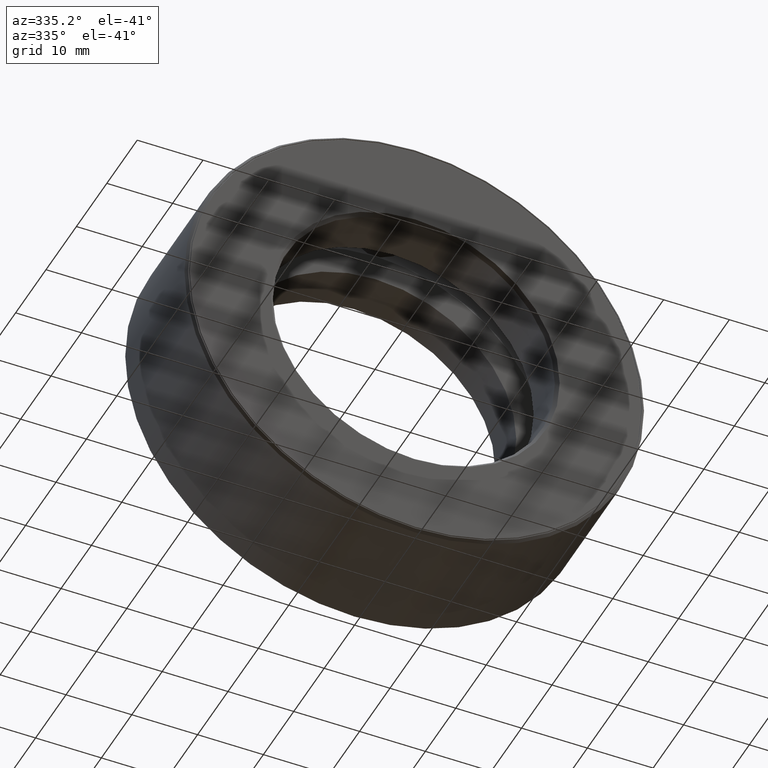
[diagram: clean part render]
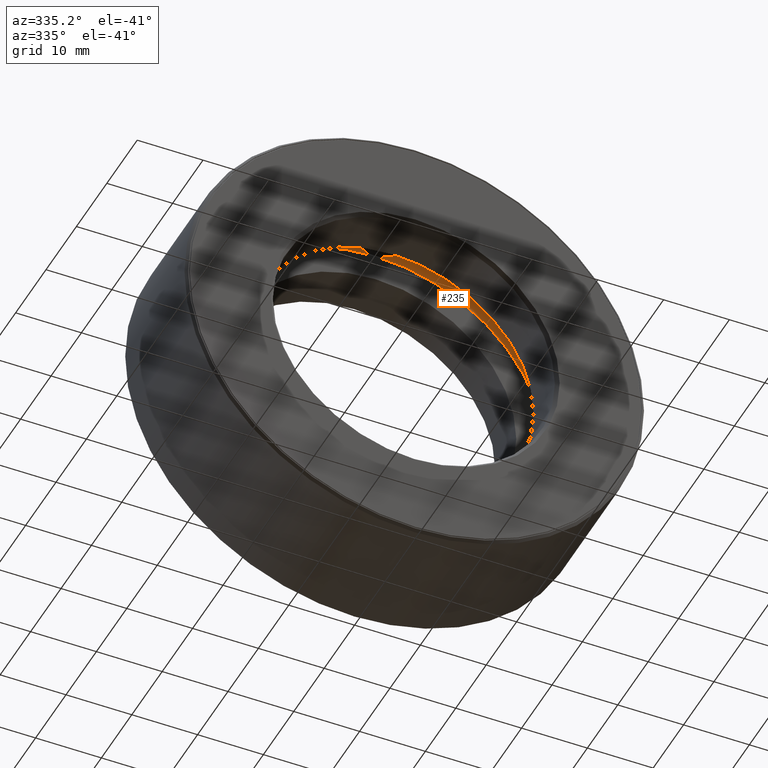
[diagram: same view with one face highlighted and labeled with its STEP entity id]
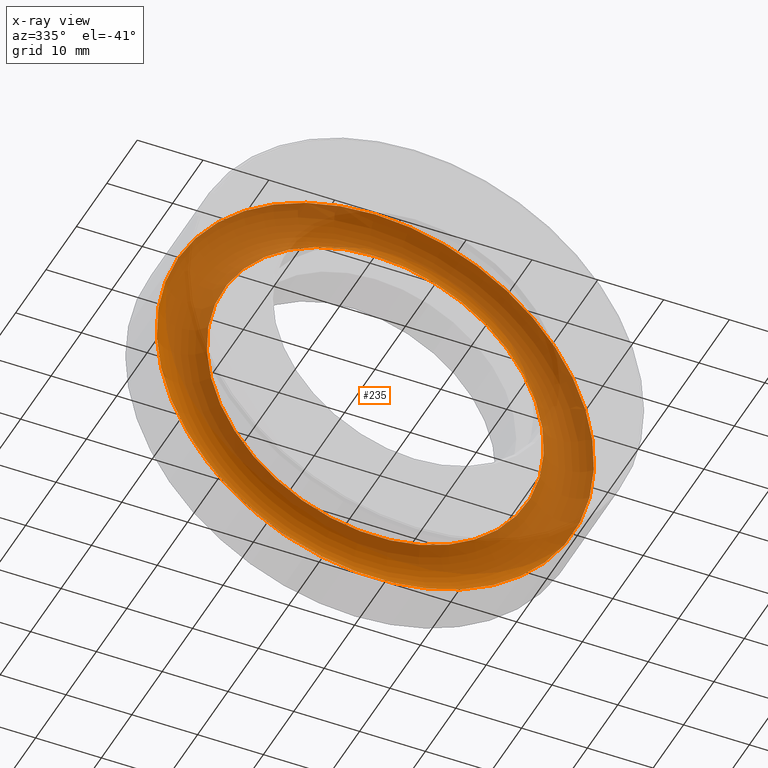
[diagram: x-ray of the same camera — body ghosted, the highlighted face saturated]
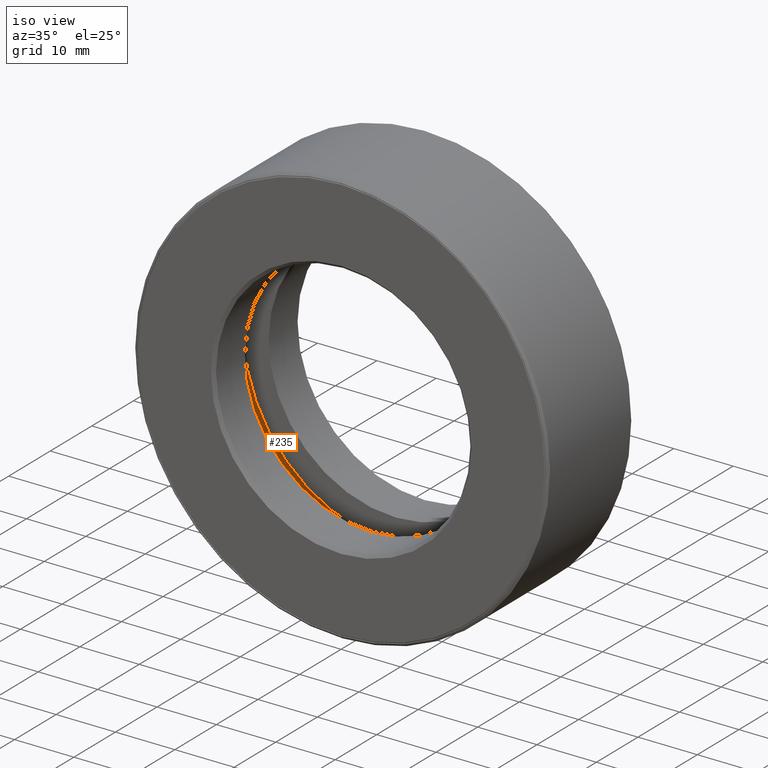
[diagram: same view with one face highlighted and labeled with its STEP entity id]
A machine part, auxiliary view. The second image highlights one B-rep face of the part: STEP entity #235.
The next image is the same camera in x-ray: the body ghosted, the highlighted face saturated — about 75% of this face is hidden behind the body in this view.
A second angle (iso view) of the same face is appended — the face is thin or edge-on in the first view.
In plain terms, the highlighted toroidal blend (fillet) surface has major radius 29.4259 mm and minor (blend) radius 4.7625 mm.
Its self-contained STEP definition (entity closure, byte-faithful):
#18 = EDGE_LOOP ( 'NONE', ( #511 ) ) ;
#36 = CARTESIAN_POINT ( 'NONE',  ( 0.0000000000000000000, 0.5187499999999998200, 0.0000000000000000000 ) ) ;
#56 = VERTEX_POINT ( 'NONE', #464 ) ;
#83 = FACE_OUTER_BOUND ( 'NONE', #18, .T. ) ;
#106 = CARTESIAN_POINT ( 'NONE',  ( 0.0000000000000000000, 0.4062499999999999400, 0.0000000000000000000 ) ) ;
#124 = CIRCLE ( 'NONE', #233, 1.308500000000000200 ) ;
#134 = AXIS2_PLACEMENT_3D ( 'NONE', #36, #595, #513 ) ;
#135 = CARTESIAN_POINT ( 'NONE',  ( 0.0000000000000000000, 0.5187499999999998200, 1.008500000000000000 ) ) ;
#167 = ORIENTED_EDGE ( 'NONE', *, *, #410, .T. ) ;
#192 = EDGE_LOOP ( 'NONE', ( #167 ) ) ;
#233 = AXIS2_PLACEMENT_3D ( 'NONE', #512, #598, #449 ) ;
#235 = ADVANCED_FACE ( 'NONE', ( #374, #83 ), #353, .F. ) ;
#236 = CIRCLE ( 'NONE', #134, 1.008500000000000000 ) ;
#348 = DIRECTION ( 'NONE',  ( 0.0000000000000000000, 0.0000000000000000000, 1.000000000000000000 ) ) ;
#353 = TOROIDAL_SURFACE ( 'NONE', #466, 1.158500000000000100, 0.1875000000000000800 ) ;
#374 = FACE_OUTER_BOUND ( 'NONE', #192, .T. ) ;
#410 = EDGE_CURVE ( 'NONE', #420, #420, #236, .T. ) ;
#420 = VERTEX_POINT ( 'NONE', #135 ) ;
#430 = DIRECTION ( 'NONE',  ( -0.0000000000000000000, 1.000000000000000000, -0.0000000000000000000 ) ) ;
#449 = DIRECTION ( 'NONE',  ( 0.0000000000000000000, 0.0000000000000000000, 1.000000000000000000 ) ) ;
#464 = CARTESIAN_POINT ( 'NONE',  ( 0.0000000000000000000, 0.5187499999999998200, 1.308500000000000200 ) ) ;
#466 = AXIS2_PLACEMENT_3D ( 'NONE', #106, #430, #348 ) ;
#511 = ORIENTED_EDGE ( 'NONE', *, *, #529, .F. ) ;
#512 = CARTESIAN_POINT ( 'NONE',  ( 0.0000000000000000000, 0.5187499999999998200, 0.0000000000000000000 ) ) ;
#513 = DIRECTION ( 'NONE',  ( 0.0000000000000000000, 0.0000000000000000000, 1.000000000000000000 ) ) ;
#529 = EDGE_CURVE ( 'NONE', #56, #56, #124, .T. ) ;
#595 = DIRECTION ( 'NONE',  ( -0.0000000000000000000, 1.000000000000000000, -0.0000000000000000000 ) ) ;
#598 = DIRECTION ( 'NONE',  ( -0.0000000000000000000, 1.000000000000000000, -0.0000000000000000000 ) ) ;